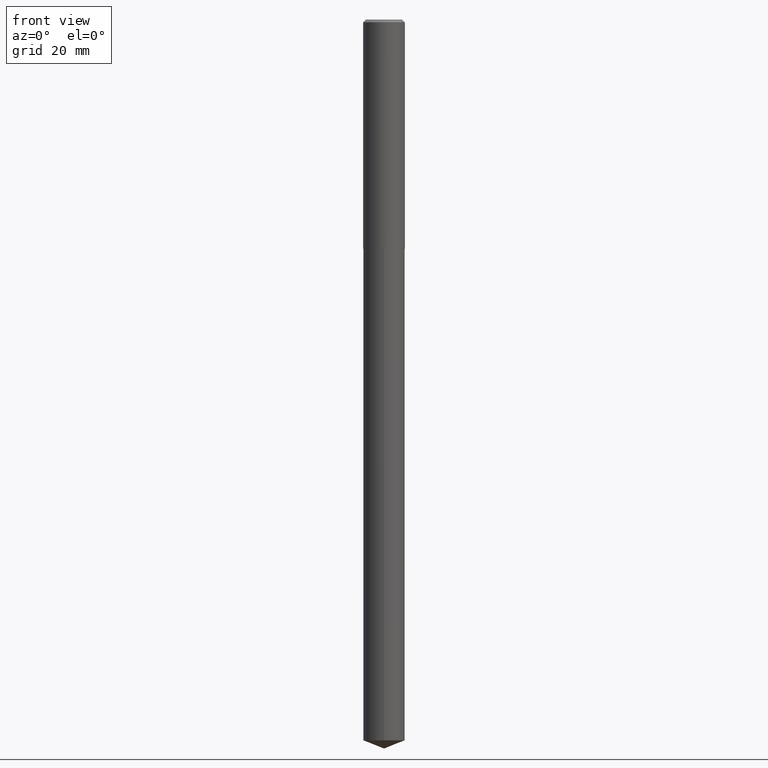
[diagram: clean part render]
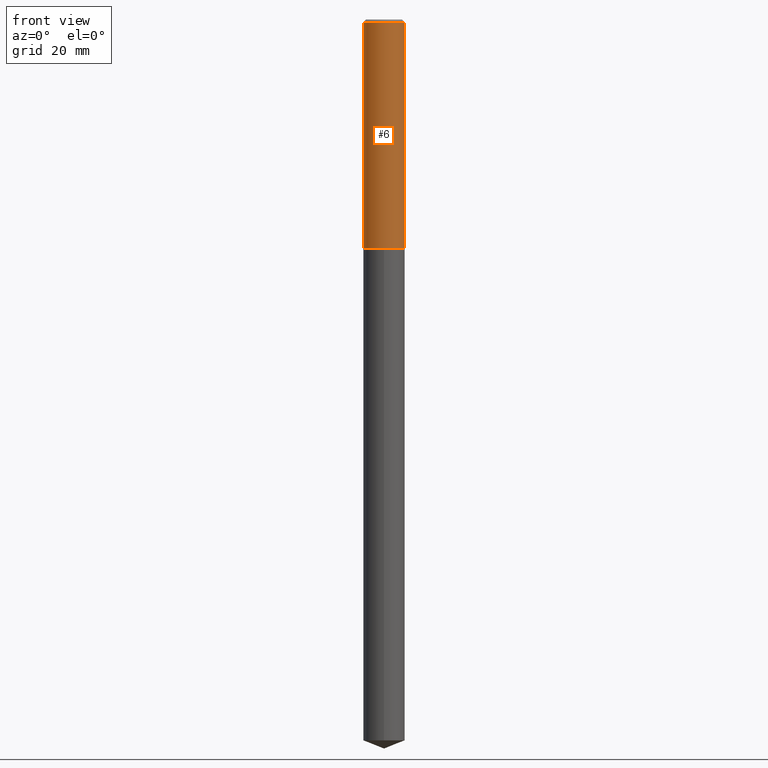
[diagram: same view with one face highlighted and labeled with its STEP entity id]
A machine part, front view. The second image highlights one B-rep face of the part: STEP entity #6.
In plain terms, the highlighted cylindrical surface (edge-blend (fillet) strip) has radius 5.9995 mm, axis along (-0, 0, 1).
Its self-contained STEP definition (entity closure, byte-faithful):
#3 = AXIS2_PLACEMENT_3D ( 'NONE', #315, #17, #16 ) ;
#6 = ADVANCED_FACE ( 'NONE', ( #246 ), #37, .T. ) ;
#15 = AXIS2_PLACEMENT_3D ( 'NONE', #154, #119, #210 ) ;
#16 = DIRECTION ( 'NONE',  ( 1.000000000000000000, -6.982962677686266711E-15, 0.000000000000000000 ) ) ;
#17 = DIRECTION ( 'NONE',  ( -2.445468806185136597E-29, 3.491481338843145583E-15, 1.000000000000000000 ) ) ;
#25 = CIRCLE ( 'NONE', #3, 0.2361999999999999933 ) ;
#37 = CYLINDRICAL_SURFACE ( 'NONE', #209, 0.2362000000000001598 ) ;
#38 = CARTESIAN_POINT ( 'NONE',  ( 0.000000000000000000, 0.000000000000000000, 0.000000000000000000 ) ) ;
#39 = EDGE_CURVE ( 'NONE', #310, #272, #223, .T. ) ;
#45 = VECTOR ( 'NONE', #193, 39.37007874015748143 ) ;
#65 = ORIENTED_EDGE ( 'NONE', *, *, #383, .T. ) ;
#66 = VECTOR ( 'NONE', #351, 39.37007874015748143 ) ;
#79 = CARTESIAN_POINT ( 'NONE',  ( -0.2362000000000001598, 1.678301941865357775E-15, -1.161852468318209598E-29 ) ) ;
#108 = ORIENTED_EDGE ( 'NONE', *, *, #220, .F. ) ;
#119 = DIRECTION ( 'NONE',  ( -2.445468806185136597E-29, 3.491481338843145583E-15, 1.000000000000000000 ) ) ;
#120 = ORIENTED_EDGE ( 'NONE', *, *, #261, .F. ) ;
#132 = DIRECTION ( 'NONE',  ( -2.445468806185136597E-29, 3.491481338843145583E-15, 1.000000000000000000 ) ) ;
#140 = CARTESIAN_POINT ( 'NONE',  ( 0.2361999999999999933, -1.758484576308345231E-15, -0.03125000000000021511 ) ) ;
#154 = CARTESIAN_POINT ( 'NONE',  ( 6.353572505349603403E-29, -9.071217666448377353E-15, -2.598099999999999632 ) ) ;
#167 = CARTESIAN_POINT ( 'NONE',  ( -0.2361999999999999933, -2.911861287278254072E-15, -0.03125000000000021511 ) ) ;
#193 = DIRECTION ( 'NONE',  ( -2.445468806185136877E-29, 3.491481338843145188E-15, 1.000000000000000000 ) ) ;
#202 = LINE ( 'NONE', #79, #66 ) ;
#207 = VERTEX_POINT ( 'NONE', #167 ) ;
#209 = AXIS2_PLACEMENT_3D ( 'NONE', #38, #132, #274 ) ;
#210 = DIRECTION ( 'NONE',  ( 1.000000000000000000, -6.982962677686263555E-15, 0.000000000000000000 ) ) ;
#220 = EDGE_CURVE ( 'NONE', #265, #207, #202, .T. ) ;
#223 = LINE ( 'NONE', #306, #45 ) ;
#246 = FACE_OUTER_BOUND ( 'NONE', #300, .T. ) ;
#261 = EDGE_CURVE ( 'NONE', #207, #272, #25, .T. ) ;
#262 = CARTESIAN_POINT ( 'NONE',  ( -0.2362000000000003264, -7.392915724583017804E-15, -2.598099999999999632 ) ) ;
#265 = VERTEX_POINT ( 'NONE', #262 ) ;
#272 = VERTEX_POINT ( 'NONE', #140 ) ;
#274 = DIRECTION ( 'NONE',  ( 1.000000000000000000, -6.982962677686266711E-15, 4.876176775795936353E-29 ) ) ;
#300 = EDGE_LOOP ( 'NONE', ( #108, #65, #333, #120 ) ) ;
#306 = CARTESIAN_POINT ( 'NONE',  ( 0.2362000000000001598, -1.649375784469497314E-15, 1.151752954443000929E-29 ) ) ;
#310 = VERTEX_POINT ( 'NONE', #317 ) ;
#315 = CARTESIAN_POINT ( 'NONE',  ( 7.642090019328603538E-31, -1.091087918388490390E-16, -0.03125000000000021511 ) ) ;
#317 = CARTESIAN_POINT ( 'NONE',  ( 0.2362000000000003264, -1.072059345091787388E-14, -2.598099999999999632 ) ) ;
#319 = CIRCLE ( 'NONE', #15, 0.2362000000000003264 ) ;
#333 = ORIENTED_EDGE ( 'NONE', *, *, #39, .T. ) ;
#351 = DIRECTION ( 'NONE',  ( -2.445468806185136877E-29, 3.491481338843145188E-15, 1.000000000000000000 ) ) ;
#383 = EDGE_CURVE ( 'NONE', #265, #310, #319, .T. ) ;